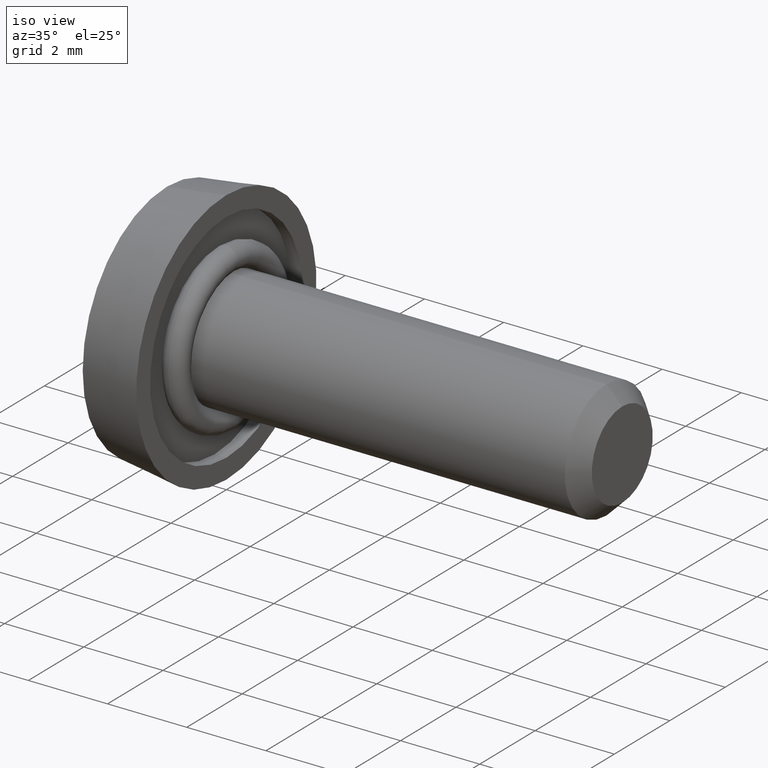
[diagram: clean part render]
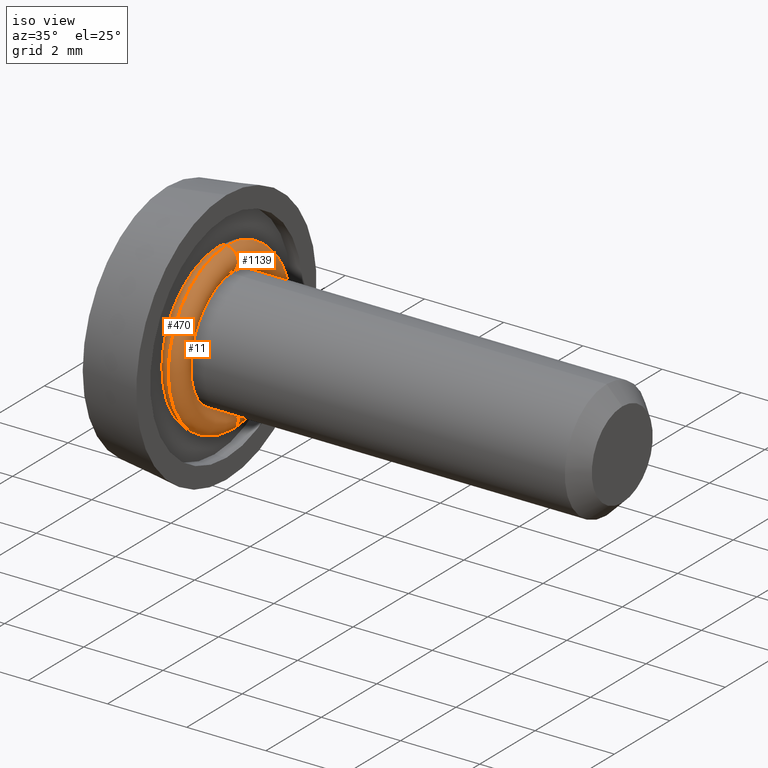
[diagram: same view with one multi-face feature highlighted, each face labeled with its STEP entity id]
A machine part, iso view. The highlighted faces form ONE feature: a constant-radius fillet chain: 3 tangent blend faces with common blend radius 0.3 mm. The faces share edges in the B-rep.
Their STEP definitions:
[1] entity #11 (Torus):
#11 = ADVANCED_FACE ( 'NONE', ( #1030 ), #60, .T. ) ;
#19 = AXIS2_PLACEMENT_3D ( 'NONE', #95, #797, #192 ) ;
#60 = TOROIDAL_SURFACE ( 'NONE', #19, 1.800000000000000000, 0.2999999999999998800 ) ;
#95 = CARTESIAN_POINT ( 'NONE',  ( 0.0000000000000000000, 0.0000000000000000000, 0.0000000000000000000 ) ) ;
#170 = DIRECTION ( 'NONE',  ( 1.000000000000000000, -0.0000000000000000000, -0.0000000000000000000 ) ) ;
#192 = DIRECTION ( 'NONE',  ( 0.0000000000000000000, 0.0000000000000000000, -1.000000000000000000 ) ) ;
#196 = VERTEX_POINT ( 'NONE', #491 ) ;
#238 = DIRECTION ( 'NONE',  ( 0.0000000000000000000, 1.000000000000000000, -1.224646799147353200E-016 ) ) ;
#261 = EDGE_CURVE ( 'NONE', #196, #349, #607, .T. ) ;
#277 = CARTESIAN_POINT ( 'NONE',  ( 0.0000000000000000000, 0.0000000000000000000, 0.0000000000000000000 ) ) ;
#283 = AXIS2_PLACEMENT_3D ( 'NONE', #1128, #1135, #1075 ) ;
#285 = DIRECTION ( 'NONE',  ( 1.000000000000000000, -0.0000000000000000000, -0.0000000000000000000 ) ) ;
#290 = DIRECTION ( 'NONE',  ( 0.0000000000000000000, 1.224646799147353200E-016, 1.000000000000000000 ) ) ;
#295 = DIRECTION ( 'NONE',  ( 0.0000000000000000000, 0.0000000000000000000, -1.000000000000000000 ) ) ;
#349 = VERTEX_POINT ( 'NONE', #592 ) ;
#405 = ORIENTED_EDGE ( 'NONE', *, *, #1012, .F. ) ;
#415 = EDGE_LOOP ( 'NONE', ( #599, #954, #510, #405 ) ) ;
#438 = AXIS2_PLACEMENT_3D ( 'NONE', #963, #238, #290 ) ;
#456 = VERTEX_POINT ( 'NONE', #629 ) ;
#491 = CARTESIAN_POINT ( 'NONE',  ( 0.0000000000000000000, 2.571758278209441500E-016, 2.100000000000000100 ) ) ;
#510 = ORIENTED_EDGE ( 'NONE', *, *, #1161, .T. ) ;
#519 = EDGE_CURVE ( 'NONE', #196, #456, #595, .T. ) ;
#528 = AXIS2_PLACEMENT_3D ( 'NONE', #277, #285, #295 ) ;
#592 = CARTESIAN_POINT ( 'NONE',  ( 0.0000000000000000000, 0.0000000000000000000, -2.100000000000000100 ) ) ;
#595 = CIRCLE ( 'NONE', #438, 0.2999999999999999300 ) ;
#599 = ORIENTED_EDGE ( 'NONE', *, *, #519, .F. ) ;
#607 = CIRCLE ( 'NONE', #528, 2.100000000000000100 ) ;
#629 = CARTESIAN_POINT ( 'NONE',  ( -3.673940397442057600E-017, 1.836970198721029700E-016, 1.500000000000000000 ) ) ;
#681 = VERTEX_POINT ( 'NONE', #1200 ) ;
#716 = AXIS2_PLACEMENT_3D ( 'NONE', #982, #170, #1084 ) ;
#797 = DIRECTION ( 'NONE',  ( 1.000000000000000000, -0.0000000000000000000, -0.0000000000000000000 ) ) ;
#954 = ORIENTED_EDGE ( 'NONE', *, *, #261, .T. ) ;
#963 = CARTESIAN_POINT ( 'NONE',  ( 0.0000000000000000000, 2.204364238465235600E-016, 1.800000000000000000 ) ) ;
#982 = CARTESIAN_POINT ( 'NONE',  ( -3.673940397442058300E-017, 0.0000000000000000000, 0.0000000000000000000 ) ) ;
#1012 = EDGE_CURVE ( 'NONE', #456, #681, #1085, .T. ) ;
#1030 = FACE_OUTER_BOUND ( 'NONE', #415, .T. ) ;
#1075 = DIRECTION ( 'NONE',  ( 0.0000000000000000000, 0.0000000000000000000, -1.000000000000000000 ) ) ;
#1084 = DIRECTION ( 'NONE',  ( 0.0000000000000000000, 0.0000000000000000000, -1.000000000000000000 ) ) ;
#1085 = CIRCLE ( 'NONE', #716, 1.500000000000000000 ) ;
#1128 = CARTESIAN_POINT ( 'NONE',  ( 0.0000000000000000000, 0.0000000000000000000, -1.800000000000000000 ) ) ;
#1135 = DIRECTION ( 'NONE',  ( -0.0000000000000000000, -1.000000000000000000, -0.0000000000000000000 ) ) ;
#1158 = CIRCLE ( 'NONE', #283, 0.2999999999999999300 ) ;
#1161 = EDGE_CURVE ( 'NONE', #349, #681, #1158, .T. ) ;
#1200 = CARTESIAN_POINT ( 'NONE',  ( -3.673940397442057600E-017, 0.0000000000000000000, -1.500000000000000000 ) ) ;
[2] entity #470 (Torus):
#26 = EDGE_LOOP ( 'NONE', ( #1023, #703, #398, #272 ) ) ;
#69 = CARTESIAN_POINT ( 'NONE',  ( 0.0000000000000000000, 0.0000000000000000000, -1.800000000000000000 ) ) ;
#114 = DIRECTION ( 'NONE',  ( -0.0000000000000000000, -1.000000000000000000, -0.0000000000000000000 ) ) ;
#139 = FACE_OUTER_BOUND ( 'NONE', #26, .T. ) ;
#170 = DIRECTION ( 'NONE',  ( 1.000000000000000000, -0.0000000000000000000, -0.0000000000000000000 ) ) ;
#174 = AXIS2_PLACEMENT_3D ( 'NONE', #929, #1083, #605 ) ;
#196 = VERTEX_POINT ( 'NONE', #491 ) ;
#227 = AXIS2_PLACEMENT_3D ( 'NONE', #69, #114, #321 ) ;
#261 = EDGE_CURVE ( 'NONE', #196, #349, #607, .T. ) ;
#272 = ORIENTED_EDGE ( 'NONE', *, *, #493, .T. ) ;
#277 = CARTESIAN_POINT ( 'NONE',  ( 0.0000000000000000000, 0.0000000000000000000, 0.0000000000000000000 ) ) ;
#285 = DIRECTION ( 'NONE',  ( 1.000000000000000000, -0.0000000000000000000, -0.0000000000000000000 ) ) ;
#295 = DIRECTION ( 'NONE',  ( 0.0000000000000000000, 0.0000000000000000000, -1.000000000000000000 ) ) ;
#321 = DIRECTION ( 'NONE',  ( 0.0000000000000000000, 0.0000000000000000000, -1.000000000000000000 ) ) ;
#349 = VERTEX_POINT ( 'NONE', #592 ) ;
#398 = ORIENTED_EDGE ( 'NONE', *, *, #1012, .T. ) ;
#456 = VERTEX_POINT ( 'NONE', #629 ) ;
#470 = ADVANCED_FACE ( 'NONE', ( #139 ), #1087, .T. ) ;
#491 = CARTESIAN_POINT ( 'NONE',  ( 0.0000000000000000000, 2.571758278209441500E-016, 2.100000000000000100 ) ) ;
#493 = EDGE_CURVE ( 'NONE', #681, #349, #807, .T. ) ;
#522 = AXIS2_PLACEMENT_3D ( 'NONE', #925, #670, #721 ) ;
#528 = AXIS2_PLACEMENT_3D ( 'NONE', #277, #285, #295 ) ;
#592 = CARTESIAN_POINT ( 'NONE',  ( 0.0000000000000000000, 0.0000000000000000000, -2.100000000000000100 ) ) ;
#605 = DIRECTION ( 'NONE',  ( 0.0000000000000000000, 0.0000000000000000000, -1.000000000000000000 ) ) ;
#607 = CIRCLE ( 'NONE', #528, 2.100000000000000100 ) ;
#629 = CARTESIAN_POINT ( 'NONE',  ( -3.673940397442057600E-017, 1.836970198721029700E-016, 1.500000000000000000 ) ) ;
#654 = CIRCLE ( 'NONE', #522, 0.2999999999999999300 ) ;
#670 = DIRECTION ( 'NONE',  ( 0.0000000000000000000, 1.000000000000000000, -1.224646799147353200E-016 ) ) ;
#681 = VERTEX_POINT ( 'NONE', #1200 ) ;
#703 = ORIENTED_EDGE ( 'NONE', *, *, #941, .F. ) ;
#716 = AXIS2_PLACEMENT_3D ( 'NONE', #982, #170, #1084 ) ;
#721 = DIRECTION ( 'NONE',  ( 0.0000000000000000000, 1.224646799147353200E-016, 1.000000000000000000 ) ) ;
#807 = CIRCLE ( 'NONE', #227, 0.2999999999999999300 ) ;
#925 = CARTESIAN_POINT ( 'NONE',  ( 0.0000000000000000000, 2.204364238465235600E-016, 1.800000000000000000 ) ) ;
#929 = CARTESIAN_POINT ( 'NONE',  ( 0.0000000000000000000, 0.0000000000000000000, 0.0000000000000000000 ) ) ;
#941 = EDGE_CURVE ( 'NONE', #456, #196, #654, .T. ) ;
#982 = CARTESIAN_POINT ( 'NONE',  ( -3.673940397442058300E-017, 0.0000000000000000000, 0.0000000000000000000 ) ) ;
#1012 = EDGE_CURVE ( 'NONE', #456, #681, #1085, .T. ) ;
#1023 = ORIENTED_EDGE ( 'NONE', *, *, #261, .F. ) ;
#1083 = DIRECTION ( 'NONE',  ( 1.000000000000000000, -0.0000000000000000000, -0.0000000000000000000 ) ) ;
#1084 = DIRECTION ( 'NONE',  ( 0.0000000000000000000, 0.0000000000000000000, -1.000000000000000000 ) ) ;
#1085 = CIRCLE ( 'NONE', #716, 1.500000000000000000 ) ;
#1087 = TOROIDAL_SURFACE ( 'NONE', #174, 1.800000000000000000, 0.2999999999999998800 ) ;
#1200 = CARTESIAN_POINT ( 'NONE',  ( -3.673940397442057600E-017, 0.0000000000000000000, -1.500000000000000000 ) ) ;
[3] entity #1139 (Torus):
#104 = EDGE_CURVE ( 'NONE', #349, #196, #702, .T. ) ;
#112 = AXIS2_PLACEMENT_3D ( 'NONE', #991, #392, #827 ) ;
#196 = VERTEX_POINT ( 'NONE', #491 ) ;
#204 = TOROIDAL_SURFACE ( 'NONE', #112, 1.800000000000000000, 0.2999999999999998800 ) ;
#238 = DIRECTION ( 'NONE',  ( 0.0000000000000000000, 1.000000000000000000, -1.224646799147353200E-016 ) ) ;
#254 = AXIS2_PLACEMENT_3D ( 'NONE', #389, #712, #365 ) ;
#257 = FACE_OUTER_BOUND ( 'NONE', #720, .T. ) ;
#283 = AXIS2_PLACEMENT_3D ( 'NONE', #1128, #1135, #1075 ) ;
#290 = DIRECTION ( 'NONE',  ( 0.0000000000000000000, 1.224646799147353200E-016, 1.000000000000000000 ) ) ;
#308 = DIRECTION ( 'NONE',  ( 0.0000000000000000000, 0.0000000000000000000, -1.000000000000000000 ) ) ;
#349 = VERTEX_POINT ( 'NONE', #592 ) ;
#365 = DIRECTION ( 'NONE',  ( 0.0000000000000000000, 0.0000000000000000000, -1.000000000000000000 ) ) ;
#389 = CARTESIAN_POINT ( 'NONE',  ( 0.0000000000000000000, 0.0000000000000000000, 0.0000000000000000000 ) ) ;
#392 = DIRECTION ( 'NONE',  ( 1.000000000000000000, -0.0000000000000000000, -0.0000000000000000000 ) ) ;
#429 = ORIENTED_EDGE ( 'NONE', *, *, #1033, .F. ) ;
#438 = AXIS2_PLACEMENT_3D ( 'NONE', #963, #238, #290 ) ;
#456 = VERTEX_POINT ( 'NONE', #629 ) ;
#467 = DIRECTION ( 'NONE',  ( 1.000000000000000000, -0.0000000000000000000, -0.0000000000000000000 ) ) ;
#491 = CARTESIAN_POINT ( 'NONE',  ( 0.0000000000000000000, 2.571758278209441500E-016, 2.100000000000000100 ) ) ;
#519 = EDGE_CURVE ( 'NONE', #196, #456, #595, .T. ) ;
#544 = ORIENTED_EDGE ( 'NONE', *, *, #104, .T. ) ;
#592 = CARTESIAN_POINT ( 'NONE',  ( 0.0000000000000000000, 0.0000000000000000000, -2.100000000000000100 ) ) ;
#594 = CIRCLE ( 'NONE', #773, 1.500000000000000000 ) ;
#595 = CIRCLE ( 'NONE', #438, 0.2999999999999999300 ) ;
#629 = CARTESIAN_POINT ( 'NONE',  ( -3.673940397442057600E-017, 1.836970198721029700E-016, 1.500000000000000000 ) ) ;
#681 = VERTEX_POINT ( 'NONE', #1200 ) ;
#702 = CIRCLE ( 'NONE', #254, 2.100000000000000100 ) ;
#712 = DIRECTION ( 'NONE',  ( 1.000000000000000000, -0.0000000000000000000, -0.0000000000000000000 ) ) ;
#720 = EDGE_LOOP ( 'NONE', ( #896, #544, #1080, #429 ) ) ;
#725 = CARTESIAN_POINT ( 'NONE',  ( -3.673940397442058300E-017, 0.0000000000000000000, 0.0000000000000000000 ) ) ;
#773 = AXIS2_PLACEMENT_3D ( 'NONE', #725, #467, #308 ) ;
#827 = DIRECTION ( 'NONE',  ( 0.0000000000000000000, 0.0000000000000000000, -1.000000000000000000 ) ) ;
#896 = ORIENTED_EDGE ( 'NONE', *, *, #1161, .F. ) ;
#963 = CARTESIAN_POINT ( 'NONE',  ( 0.0000000000000000000, 2.204364238465235600E-016, 1.800000000000000000 ) ) ;
#991 = CARTESIAN_POINT ( 'NONE',  ( 0.0000000000000000000, 0.0000000000000000000, 0.0000000000000000000 ) ) ;
#1033 = EDGE_CURVE ( 'NONE', #681, #456, #594, .T. ) ;
#1075 = DIRECTION ( 'NONE',  ( 0.0000000000000000000, 0.0000000000000000000, -1.000000000000000000 ) ) ;
#1080 = ORIENTED_EDGE ( 'NONE', *, *, #519, .T. ) ;
#1128 = CARTESIAN_POINT ( 'NONE',  ( 0.0000000000000000000, 0.0000000000000000000, -1.800000000000000000 ) ) ;
#1135 = DIRECTION ( 'NONE',  ( -0.0000000000000000000, -1.000000000000000000, -0.0000000000000000000 ) ) ;
#1139 = ADVANCED_FACE ( 'NONE', ( #257 ), #204, .T. ) ;
#1158 = CIRCLE ( 'NONE', #283, 0.2999999999999999300 ) ;
#1161 = EDGE_CURVE ( 'NONE', #349, #681, #1158, .T. ) ;
#1200 = CARTESIAN_POINT ( 'NONE',  ( -3.673940397442057600E-017, 0.0000000000000000000, -1.500000000000000000 ) ) ;